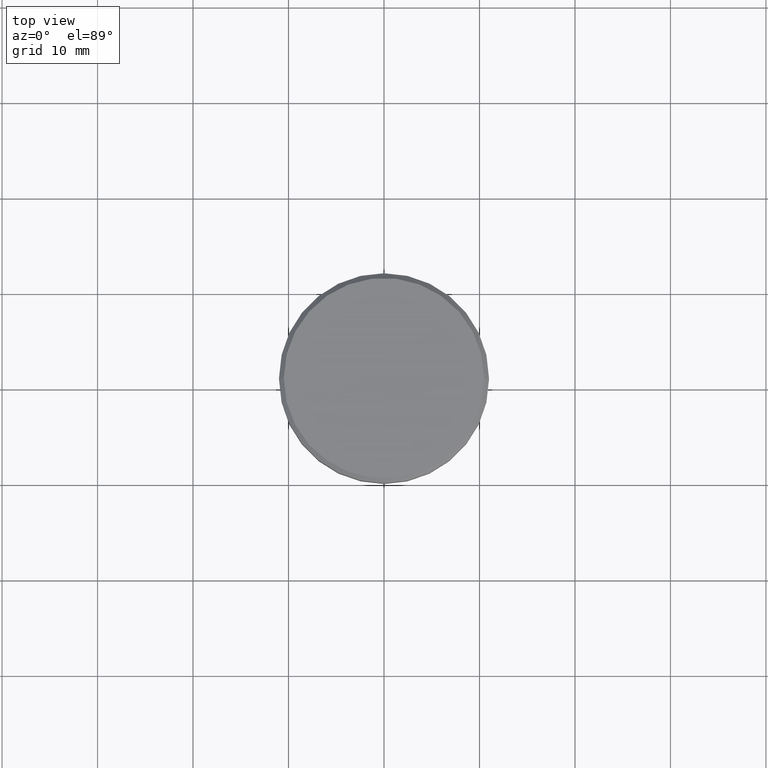
[diagram: clean part render]
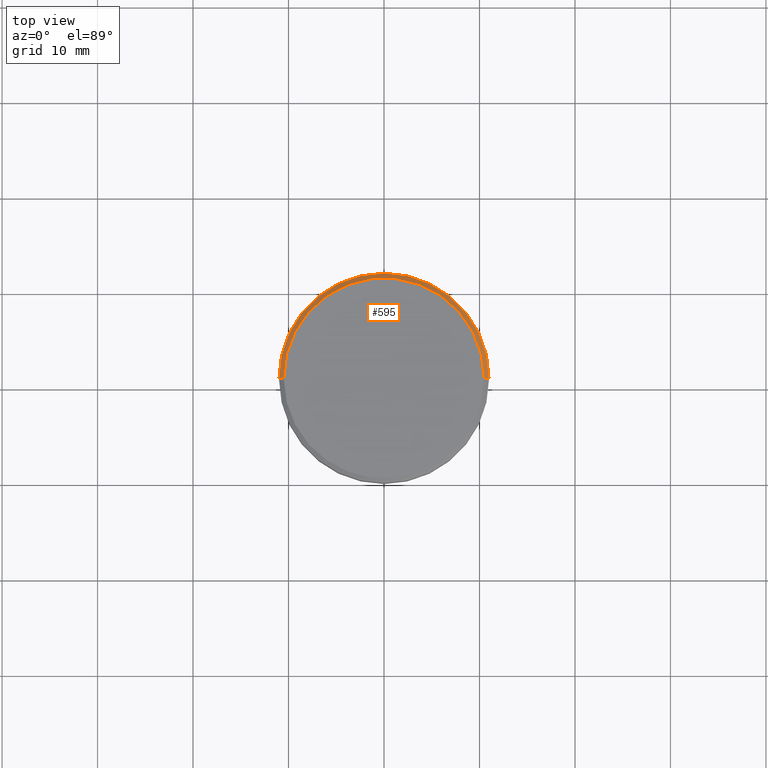
[diagram: same view with one face highlighted and labeled with its STEP entity id]
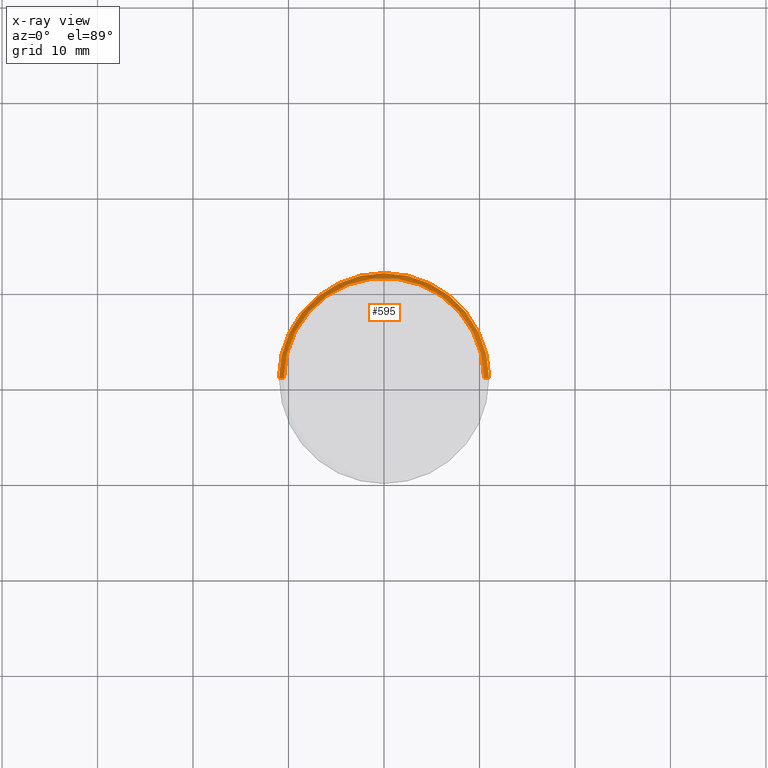
[diagram: x-ray of the same camera — body ghosted, the highlighted face saturated]
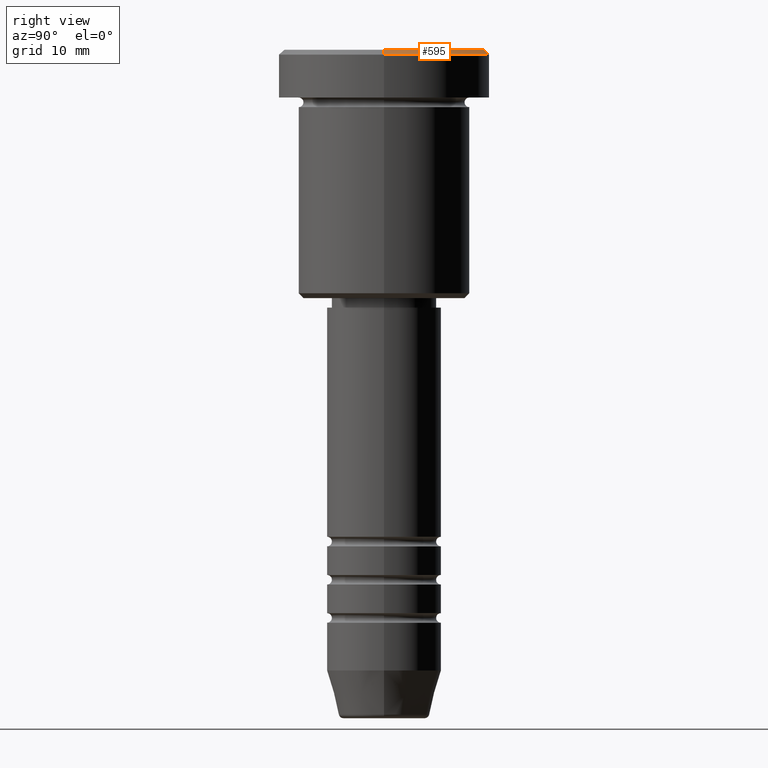
[diagram: same view with one face highlighted and labeled with its STEP entity id]
A machine part, top view. The second image highlights one B-rep face of the part: STEP entity #595.
The next image is the same camera in x-ray: the body ghosted, the highlighted face saturated — about 0% of this face is hidden behind the body in this view.
A second angle (right view) of the same face is appended — the face is thin or edge-on in the first view.
In plain terms, the highlighted conical surface has half-angle 45 deg.
Its self-contained STEP definition (entity closure, byte-faithful):
#5 = VERTEX_POINT ( 'NONE', #516 ) ;
#10 = CIRCLE ( 'NONE', #333, 11.00000000000000178 ) ;
#40 = DIRECTION ( 'NONE',  ( -1.000000000000000000, 0.000000000000000000, 0.000000000000000000 ) ) ;
#74 = LINE ( 'NONE', #354, #919 ) ;
#104 = EDGE_CURVE ( 'NONE', #839, #237, #10, .T. ) ;
#155 = FACE_OUTER_BOUND ( 'NONE', #858, .T. ) ;
#178 = DIRECTION ( 'NONE',  ( 1.000000000000000000, 0.000000000000000000, 0.000000000000000000 ) ) ;
#182 = DIRECTION ( 'NONE',  ( -0.000000000000000000, -0.000000000000000000, 1.000000000000000000 ) ) ;
#237 = VERTEX_POINT ( 'NONE', #833 ) ;
#326 = DIRECTION ( 'NONE',  ( 0.000000000000000000, 0.000000000000000000, -1.000000000000000000 ) ) ;
#333 = AXIS2_PLACEMENT_3D ( 'NONE', #986, #326, #969 ) ;
#354 = CARTESIAN_POINT ( 'NONE',  ( 10.49999999999998224, 1.285879139104718661E-15, 0.000000000000000000 ) ) ;
#466 = AXIS2_PLACEMENT_3D ( 'NONE', #910, #182, #178 ) ;
#479 = CARTESIAN_POINT ( 'NONE',  ( -11.00000000000000178, 1.347111479062088602E-15, -0.5000000000000229816 ) ) ;
#516 = CARTESIAN_POINT ( 'NONE',  ( -10.49999999999998224, 0.000000000000000000, 0.000000000000000000 ) ) ;
#549 = ORIENTED_EDGE ( 'NONE', *, *, #1133, .T. ) ;
#581 = CIRCLE ( 'NONE', #466, 10.49999999999998224 ) ;
#583 = ORIENTED_EDGE ( 'NONE', *, *, #104, .F. ) ;
#595 = ADVANCED_FACE ( 'NONE', ( #155 ), #1010, .T. ) ;
#596 = CARTESIAN_POINT ( 'NONE',  ( 0.000000000000000000, 0.000000000000000000, 0.000000000000000000 ) ) ;
#732 = LINE ( 'NONE', #892, #887 ) ;
#803 = DIRECTION ( 'NONE',  ( 0.7071067811865451302, 8.659560562354904508E-17, -0.7071067811865500152 ) ) ;
#829 = VERTEX_POINT ( 'NONE', #853 ) ;
#833 = CARTESIAN_POINT ( 'NONE',  ( 11.00000000000000178, 0.000000000000000000, -0.5000000000000229816 ) ) ;
#839 = VERTEX_POINT ( 'NONE', #479 ) ;
#853 = CARTESIAN_POINT ( 'NONE',  ( 10.49999999999998224, 1.316495309083403632E-15, 0.000000000000000000 ) ) ;
#858 = EDGE_LOOP ( 'NONE', ( #1118, #549, #583, #952 ) ) ;
#867 = DIRECTION ( 'NONE',  ( 0.000000000000000000, 0.000000000000000000, -1.000000000000000000 ) ) ;
#887 = VECTOR ( 'NONE', #982, 1000.000000000000114 ) ;
#892 = CARTESIAN_POINT ( 'NONE',  ( -10.49999999999998224, 0.000000000000000000, 0.000000000000000000 ) ) ;
#910 = CARTESIAN_POINT ( 'NONE',  ( 0.000000000000000000, 0.000000000000000000, 0.000000000000000000 ) ) ;
#919 = VECTOR ( 'NONE', #803, 1000.000000000000114 ) ;
#952 = ORIENTED_EDGE ( 'NONE', *, *, #1175, .F. ) ;
#969 = DIRECTION ( 'NONE',  ( 1.000000000000000000, 0.000000000000000000, 0.000000000000000000 ) ) ;
#982 = DIRECTION ( 'NONE',  ( -0.7071067811865451302, 0.000000000000000000, -0.7071067811865500152 ) ) ;
#986 = CARTESIAN_POINT ( 'NONE',  ( 0.000000000000000000, 0.000000000000000000, -0.5000000000000229816 ) ) ;
#995 = AXIS2_PLACEMENT_3D ( 'NONE', #596, #867, #40 ) ;
#1010 = CONICAL_SURFACE ( 'NONE', #995, 10.49999999999998224, 0.7853981633974447263 ) ;
#1107 = EDGE_CURVE ( 'NONE', #829, #5, #581, .T. ) ;
#1118 = ORIENTED_EDGE ( 'NONE', *, *, #1107, .F. ) ;
#1133 = EDGE_CURVE ( 'NONE', #829, #237, #74, .T. ) ;
#1175 = EDGE_CURVE ( 'NONE', #5, #839, #732, .T. ) ;